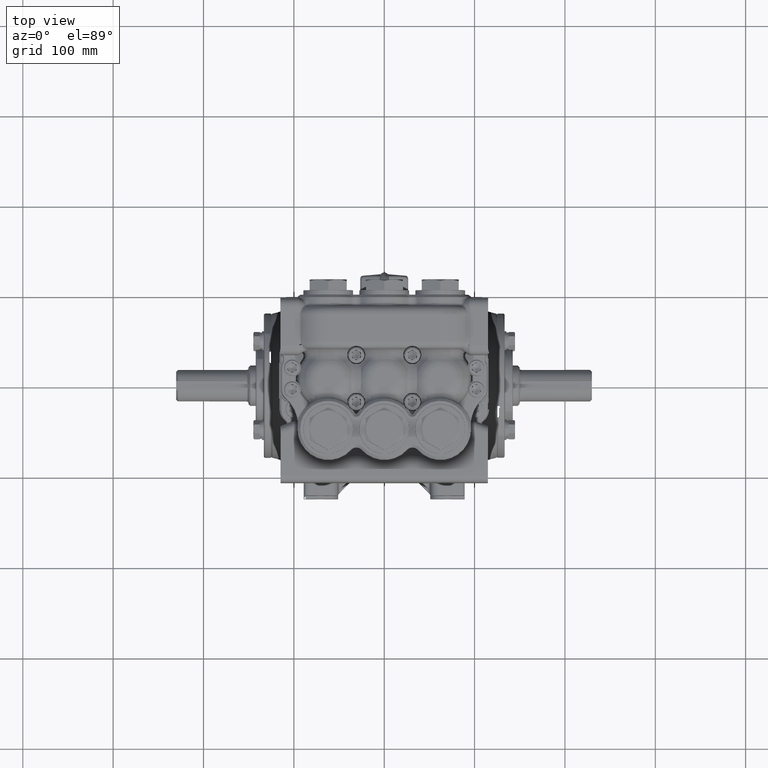
[diagram: clean part render]
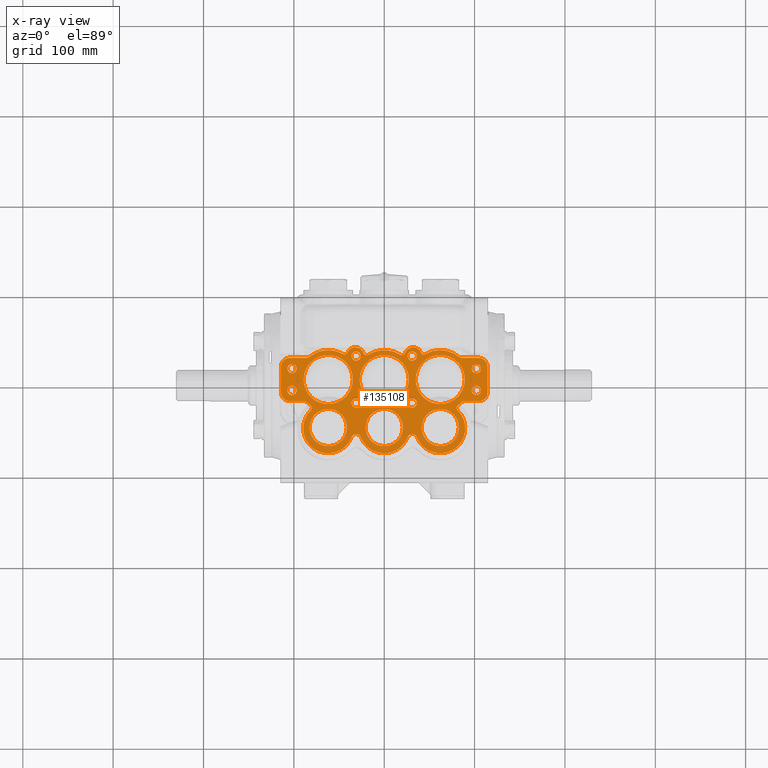
[diagram: x-ray — body ghosted, one internal face saturated and labeled with its STEP entity id]
A machine part, top view, then the same camera in x-ray: the body is ghosted and one INTERNAL B-rep face — a face not visible from any outside direction — is saturated and labeled: STEP entity #135108.
In plain terms, the highlighted planar face has unit normal (0, 0, 1).
Its self-contained STEP definition (entity closure, byte-faithful):
#68 = AXIS2_PLACEMENT_3D ( 'NONE', #134320, #39390, #81668 ) ;
#1013 = ORIENTED_EDGE ( 'NONE', *, *, #31062, .T. ) ;
#1261 = CARTESIAN_POINT ( 'NONE',  ( -3.251000000000000778, -2.092000000000000970, 15.33165354330710350 ) ) ;
#1314 = CARTESIAN_POINT ( 'NONE',  ( -3.361465562303387333, 0.9474999999999957900, 15.33165354330710350 ) ) ;
#1348 = CARTESIAN_POINT ( 'NONE',  ( 4.499999999999995559, 0.5687992125984246972, 15.33165354330710350 ) ) ;
#1635 = CARTESIAN_POINT ( 'NONE',  ( 1.220472440944881276, -2.595029314722647751, 15.33165354330710350 ) ) ;
#1731 = EDGE_CURVE ( 'NONE', #26584, #92463, #87414, .T. ) ;
#2173 = CARTESIAN_POINT ( 'NONE',  ( -2.440944881889764329, -2.125984251968504157, 15.33165354330710350 ) ) ;
#2717 = CARTESIAN_POINT ( 'NONE',  ( -4.015748031496062964, 0.4724409448818898127, 15.33165354330710350 ) ) ;
#2914 = VERTEX_POINT ( 'NONE', #96301 ) ;
#3021 = DIRECTION ( 'NONE',  ( 1.000000000000000000, 0.0000000000000000000, 0.0000000000000000000 ) ) ;
#3092 = CARTESIAN_POINT ( 'NONE',  ( -3.510907914435821287, 7.288787522157093710E-16, 15.33165354330710350 ) ) ;
#3622 = CIRCLE ( 'NONE', #81123, 0.2007874015748029040 ) ;
#3909 = AXIS2_PLACEMENT_3D ( 'NONE', #78963, #121215, #26281 ) ;
#4114 = CARTESIAN_POINT ( 'NONE',  ( 4.121299212598424688, 0.5687992125984246972, 15.33165354330710350 ) ) ;
#4572 = CIRCLE ( 'NONE', #82089, 0.2007874015748029040 ) ;
#5075 = CIRCLE ( 'NONE', #82579, 0.8100000000000002753 ) ;
#5111 = AXIS2_PLACEMENT_3D ( 'NONE', #15072, #46946, #89194 ) ;
#5320 = EDGE_CURVE ( 'NONE', #104525, #115687, #7580, .T. ) ;
#5604 = CIRCLE ( 'NONE', #83109, 1.092499999999994698 ) ;
#6411 = AXIS2_PLACEMENT_3D ( 'NONE', #29612, #71868, #114122 ) ;
#6464 = DIRECTION ( 'NONE',  ( 1.000000000000000000, 0.0000000000000000000, 0.0000000000000000000 ) ) ;
#6570 = CIRCLE ( 'NONE', #84073, 0.2007874015748029040 ) ;
#6727 = EDGE_CURVE ( 'NONE', #30309, #67691, #5604, .T. ) ;
#7278 = FACE_BOUND ( 'NONE', #17839, .T. ) ;
#7339 = ORIENTED_EDGE ( 'NONE', *, *, #37893, .T. ) ;
#7370 = ORIENTED_EDGE ( 'NONE', *, *, #30286, .T. ) ;
#7374 = VERTEX_POINT ( 'NONE', #16207 ) ;
#7580 = CIRCLE ( 'NONE', #85097, 0.2007874015748029040 ) ;
#7735 = AXIS2_PLACEMENT_3D ( 'NONE', #44910, #87187, #129449 ) ;
#7770 = EDGE_CURVE ( 'NONE', #85205, #63464, #85506, .T. ) ;
#8103 = ORIENTED_EDGE ( 'NONE', *, *, #94796, .T. ) ;
#8311 = VECTOR ( 'NONE', #66204, 39.37007874015748143 ) ;
#8777 = DIRECTION ( 'NONE',  ( 0.0000000000000000000, 0.0000000000000000000, 1.000000000000000000 ) ) ;
#8931 = DIRECTION ( 'NONE',  ( 1.000000000000000000, 0.0000000000000000000, 0.0000000000000000000 ) ) ;
#9026 = DIRECTION ( 'NONE',  ( 1.000000000000000000, 0.0000000000000000000, 0.0000000000000000000 ) ) ;
#9092 = AXIS2_PLACEMENT_3D ( 'NONE', #19799, #93962, #136245 ) ;
#9109 = LINE ( 'NONE', #51394, #97792 ) ;
#9164 = AXIS2_PLACEMENT_3D ( 'NONE', #82420, #124673, #29752 ) ;
#9369 = CARTESIAN_POINT ( 'NONE',  ( -4.121299212598425576, 0.5687992125984246972, 15.33165354330710350 ) ) ;
#9910 = CIRCLE ( 'NONE', #87384, 0.2007874015748029040 ) ;
#10647 = VERTEX_POINT ( 'NONE', #32600 ) ;
#10857 = EDGE_CURVE ( 'NONE', #115687, #104525, #120975, .T. ) ;
#11318 = VERTEX_POINT ( 'NONE', #82440 ) ;
#11394 = EDGE_CURVE ( 'NONE', #71479, #11318, #101746, .T. ) ;
#11573 = CARTESIAN_POINT ( 'NONE',  ( -3.361465562303387333, 1.095079095483099119, 15.33165354330710350 ) ) ;
#12052 = ORIENTED_EDGE ( 'NONE', *, *, #15819, .T. ) ;
#12602 = CARTESIAN_POINT ( 'NONE',  ( -4.499999999999995559, -0.5687992125984255853, 15.33165354330710350 ) ) ;
#13172 = VERTEX_POINT ( 'NONE', #36667 ) ;
#13448 = CARTESIAN_POINT ( 'NONE',  ( 0.9068944816309711943, 1.161266051201140348, 15.33165354330710350 ) ) ;
#13791 = CARTESIAN_POINT ( 'NONE',  ( -0.7636240843073032192, 1.216985759413899970, 15.33165354330710350 ) ) ;
#14005 = AXIS2_PLACEMENT_3D ( 'NONE', #30863, #73109, #115379 ) ;
#14289 = AXIS2_PLACEMENT_3D ( 'NONE', #24882, #67146, #109404 ) ;
#14419 = CARTESIAN_POINT ( 'NONE',  ( 3.510907914435819954, 0.0000000000000000000, 15.33165354330710350 ) ) ;
#14484 = VERTEX_POINT ( 'NONE', #94837 ) ;
#14550 = ORIENTED_EDGE ( 'NONE', *, *, #31973, .T. ) ;
#15007 = DIRECTION ( 'NONE',  ( -1.000000000000000000, 0.0000000000000000000, 0.0000000000000000000 ) ) ;
#15072 = CARTESIAN_POINT ( 'NONE',  ( -2.440944881889764329, -2.125984251968504157, 15.33165354330710350 ) ) ;
#15246 = CIRCLE ( 'NONE', #92693, 0.2007874015748029040 ) ;
#15766 = CARTESIAN_POINT ( 'NONE',  ( 4.216535433070864869, -0.4724409448818896462, 15.33165354330710350 ) ) ;
#15819 = EDGE_CURVE ( 'NONE', #70508, #66518, #68905, .T. ) ;
#16027 = VERTEX_POINT ( 'NONE', #91093 ) ;
#16142 = ORIENTED_EDGE ( 'NONE', *, *, #121885, .F. ) ;
#16207 = CARTESIAN_POINT ( 'NONE',  ( -4.121299212598425576, -0.9474999999999961231, 15.33165354330710350 ) ) ;
#17451 = CIRCLE ( 'NONE', #94929, 0.2007874015748029040 ) ;
#17694 = FACE_BOUND ( 'NONE', #72493, .T. ) ;
#17835 = CARTESIAN_POINT ( 'NONE',  ( -3.814960629921260615, -0.4724409448818896462, 15.33165354330710350 ) ) ;
#17839 = EDGE_LOOP ( 'NONE', ( #7370, #101549 ) ) ;
#18233 = EDGE_CURVE ( 'NONE', #115616, #84378, #5075, .T. ) ;
#18241 = VERTEX_POINT ( 'NONE', #110793 ) ;
#18492 = CARTESIAN_POINT ( 'NONE',  ( -2.441000000000000725, 5.978528219360845830E-16, 15.33165354330710350 ) ) ;
#18937 = CARTESIAN_POINT ( 'NONE',  ( -3.266504291152520167, 0.9821103103917191435, 15.33165354330710350 ) ) ;
#19270 = LINE ( 'NONE', #61548, #31420 ) ;
#19799 = CARTESIAN_POINT ( 'NONE',  ( 3.302499300227539347, -1.237654226447215899, 15.33165354330710350 ) ) ;
#19840 = ORIENTED_EDGE ( 'NONE', *, *, #38149, .T. ) ;
#20106 = DIRECTION ( 'NONE',  ( -0.0000000000000000000, -0.0000000000000000000, 1.000000000000000000 ) ) ;
#20162 = VERTEX_POINT ( 'NONE', #112360 ) ;
#20945 = CIRCLE ( 'NONE', #98404, 0.1457408926346303868 ) ;
#20953 = CARTESIAN_POINT ( 'NONE',  ( -5.463695987328526437E-16, -2.125984251968504157, 15.33165354330710350 ) ) ;
#21058 = DIRECTION ( 'NONE',  ( 0.0000000000000000000, 0.0000000000000000000, -1.000000000000000000 ) ) ;
#21441 = CARTESIAN_POINT ( 'NONE',  ( -1.019685039370080704, -1.023622047244094224, 15.33165354330710350 ) ) ;
#22341 = CARTESIAN_POINT ( 'NONE',  ( 1.603962561608296866, 1.182100231262654511, 15.33165354330710350 ) ) ;
#22426 = ORIENTED_EDGE ( 'NONE', *, *, #102742, .T. ) ;
#22754 = EDGE_CURVE ( 'NONE', #128726, #49199, #89875, .T. ) ;
#22781 = DIRECTION ( 'NONE',  ( 1.000000000000000000, 0.0000000000000000000, 0.0000000000000000000 ) ) ;
#22869 = AXIS2_PLACEMENT_3D ( 'NONE', #124551, #29630, #71885 ) ;
#23107 = CARTESIAN_POINT ( 'NONE',  ( -1.371092085564179719, 5.978528219360845830E-16, 15.33165354330710350 ) ) ;
#23936 = CARTESIAN_POINT ( 'NONE',  ( 4.499999999999995559, 1.024000000000000021, 15.33165354330710350 ) ) ;
#24003 = DIRECTION ( 'NONE',  ( 0.0000000000000000000, 0.0000000000000000000, 1.000000000000000000 ) ) ;
#24113 = CARTESIAN_POINT ( 'NONE',  ( -3.362644217051137918, -1.004111216730035006, 15.33165354330710350 ) ) ;
#24149 = AXIS2_PLACEMENT_3D ( 'NONE', #103728, #8777, #51073 ) ;
#24279 = VERTEX_POINT ( 'NONE', #35007 ) ;
#24665 = ORIENTED_EDGE ( 'NONE', *, *, #106478, .T. ) ;
#24683 = CARTESIAN_POINT ( 'NONE',  ( 2.440944881889763440, -2.125984251968504157, 15.33165354330710350 ) ) ;
#24882 = CARTESIAN_POINT ( 'NONE',  ( -4.121299212598425576, -0.5687992125984255853, 15.33165354330710350 ) ) ;
#25065 = ORIENTED_EDGE ( 'NONE', *, *, #114043, .T. ) ;
#25512 = CIRCLE ( 'NONE', #102940, 0.1457408926346309141 ) ;
#25649 = ORIENTED_EDGE ( 'NONE', *, *, #80608, .T. ) ;
#25730 = AXIS2_PLACEMENT_3D ( 'NONE', #38208, #80493, #122736 ) ;
#25920 = CIRCLE ( 'NONE', #103357, 1.363000000000001544 ) ;
#25977 = CARTESIAN_POINT ( 'NONE',  ( 2.440999999999998948, 0.0000000000000000000, 15.33165354330710350 ) ) ;
#26263 = ORIENTED_EDGE ( 'NONE', *, *, #75515, .T. ) ;
#26276 = DIRECTION ( 'NONE',  ( 0.0000000000000000000, 0.0000000000000000000, -1.000000000000000000 ) ) ;
#26281 = DIRECTION ( 'NONE',  ( 1.000000000000000000, 0.0000000000000000000, 0.0000000000000000000 ) ) ;
#26584 = VERTEX_POINT ( 'NONE', #1314 ) ;
#26695 = ORIENTED_EDGE ( 'NONE', *, *, #115283, .T. ) ;
#28117 = FACE_BOUND ( 'NONE', #117675, .T. ) ;
#28701 = EDGE_LOOP ( 'NONE', ( #97305, #8103, #29785, #42032, #14550, #80531, #42213, #53732, #96163, #71452, #136606, #103925, #47564, #61202, #24665, #130855, #26695, #42164, #86671, #59426, #39099, #7339, #99090, #37404, #99679, #1013, #25065, #125740, #115516, #22426, #48293, #39455, #33720 ) ) ;
#28791 = CARTESIAN_POINT ( 'NONE',  ( 1.259842519685038909, 1.024000000000000021, 15.33165354330710350 ) ) ;
#29612 = CARTESIAN_POINT ( 'NONE',  ( 1.220472440944881276, -1.023622047244094224, 15.33165354330710350 ) ) ;
#29630 = DIRECTION ( 'NONE',  ( -0.0000000000000000000, -0.0000000000000000000, -1.000000000000000000 ) ) ;
#29752 = DIRECTION ( 'NONE',  ( 1.000000000000000000, 0.0000000000000000000, 0.0000000000000000000 ) ) ;
#29785 = ORIENTED_EDGE ( 'NONE', *, *, #73594, .T. ) ;
#29903 = ORIENTED_EDGE ( 'NONE', *, *, #52284, .F. ) ;
#29974 = DIRECTION ( 'NONE',  ( -0.0000000000000000000, -0.0000000000000000000, -1.000000000000000000 ) ) ;
#30111 = DIRECTION ( 'NONE',  ( -0.0000000000000000000, -0.0000000000000000000, 1.000000000000000000 ) ) ;
#30146 = AXIS2_PLACEMENT_3D ( 'NONE', #24683, #66947, #109201 ) ;
#30171 = EDGE_CURVE ( 'NONE', #67691, #128726, #48782, .T. ) ;
#30286 = EDGE_CURVE ( 'NONE', #112102, #51030, #35583, .T. ) ;
#30309 = VERTEX_POINT ( 'NONE', #40352 ) ;
#30349 = CARTESIAN_POINT ( 'NONE',  ( 3.508033327146296454, -1.162499999999998090, 15.33165354330710350 ) ) ;
#30474 = DIRECTION ( 'NONE',  ( 1.000000000000000000, 0.0000000000000000000, 0.0000000000000000000 ) ) ;
#30754 = VERTEX_POINT ( 'NONE', #46860 ) ;
#30863 = CARTESIAN_POINT ( 'NONE',  ( 3.361465562303388666, 1.095079095483103782, 15.33165354330710350 ) ) ;
#31062 = EDGE_CURVE ( 'NONE', #40124, #61799, #46741, .T. ) ;
#31420 = VECTOR ( 'NONE', #103790, 39.37007874015748143 ) ;
#31484 = DIRECTION ( 'NONE',  ( 1.000000000000000000, 0.0000000000000000000, 0.0000000000000000000 ) ) ;
#31864 = CARTESIAN_POINT ( 'NONE',  ( 1.220472440944881276, 1.023622047244094446, 15.33165354330710350 ) ) ;
#31973 = EDGE_CURVE ( 'NONE', #76734, #58206, #19270, .T. ) ;
#31993 = AXIS2_PLACEMENT_3D ( 'NONE', #136557, #41612, #83892 ) ;
#32310 = DIRECTION ( 'NONE',  ( -0.0000000000000000000, -0.0000000000000000000, 1.000000000000000000 ) ) ;
#32496 = CARTESIAN_POINT ( 'NONE',  ( 0.8099999999999990541, -2.092000000000000082, 15.33165354330710350 ) ) ;
#32521 = DIRECTION ( 'NONE',  ( 1.000000000000000000, 0.0000000000000000000, 0.0000000000000000000 ) ) ;
#32600 = CARTESIAN_POINT ( 'NONE',  ( 4.216535433070864869, 0.4724409448818898127, 15.33165354330710350 ) ) ;
#32687 = CARTESIAN_POINT ( 'NONE',  ( 3.508033327146296454, -0.9474999999999943467, 15.33165354330710350 ) ) ;
#33057 = CARTESIAN_POINT ( 'NONE',  ( -1.259842519685040019, 1.024000000000000021, 15.33165354330710350 ) ) ;
#33642 = CARTESIAN_POINT ( 'NONE',  ( -4.015748031496062964, -0.4724409448818896462, 15.33165354330710350 ) ) ;
#33720 = ORIENTED_EDGE ( 'NONE', *, *, #30171, .T. ) ;
#33767 = CARTESIAN_POINT ( 'NONE',  ( 1.421161981903317217, -2.517901445895005086, 15.33165354330710350 ) ) ;
#33870 = DIRECTION ( 'NONE',  ( 1.000000000000000000, 0.0000000000000000000, 0.0000000000000000000 ) ) ;
#33963 = CIRCLE ( 'NONE', #111361, 0.2007874015748029040 ) ;
#34774 = DIRECTION ( 'NONE',  ( -1.000000000000000000, -5.055837290980251602E-16, 0.0000000000000000000 ) ) ;
#35005 = EDGE_LOOP ( 'NONE', ( #86801, #26263 ) ) ;
#35007 = CARTESIAN_POINT ( 'NONE',  ( -1.421259842519686512, -1.023622047244094224, 15.33165354330710350 ) ) ;
#35029 = CARTESIAN_POINT ( 'NONE',  ( 2.440944881889763440, -2.989295336501413453E-16, 15.33165354330710350 ) ) ;
#35345 = CARTESIAN_POINT ( 'NONE',  ( 3.201549489594019082, -1.341741380952743645, 15.33165354330710350 ) ) ;
#35583 = CIRCLE ( 'NONE', #112958, 1.069907914435821006 ) ;
#35686 = AXIS2_PLACEMENT_3D ( 'NONE', #39398, #81673, #123910 ) ;
#36173 = EDGE_LOOP ( 'NONE', ( #25649, #89529 ) ) ;
#36172 = EDGE_LOOP ( 'NONE', ( #77011, #102818 ) ) ;
#36288 = CIRCLE ( 'NONE', #113686, 0.8100000000000000533 ) ;
#36419 = EDGE_CURVE ( 'NONE', #73040, #16027, #64889, .T. ) ;
#36627 = EDGE_CURVE ( 'NONE', #13172, #133379, #33963, .T. ) ;
#36631 = VERTEX_POINT ( 'NONE', #21441 ) ;
#36667 = CARTESIAN_POINT ( 'NONE',  ( 1.421259842519684291, 1.023622047244094446, 15.33165354330710350 ) ) ;
#36801 = ORIENTED_EDGE ( 'NONE', *, *, #18233, .T. ) ;
#37404 = ORIENTED_EDGE ( 'NONE', *, *, #97653, .T. ) ;
#37708 = EDGE_CURVE ( 'NONE', #126378, #82148, #107112, .T. ) ;
#37736 = DIRECTION ( 'NONE',  ( 1.000000000000000000, -7.536132396314969609E-15, 0.0000000000000000000 ) ) ;
#37765 = CARTESIAN_POINT ( 'NONE',  ( -4.499999999999995559, 1.024000000000000021, 15.33165354330710350 ) ) ;
#37893 = EDGE_CURVE ( 'NONE', #92463, #67852, #51844, .T. ) ;
#38149 = EDGE_CURVE ( 'NONE', #84378, #115616, #91700, .T. ) ;
#38208 = CARTESIAN_POINT ( 'NONE',  ( 0.7636240843073022200, 1.216985759413899304, 15.33165354330710350 ) ) ;
#38460 = VERTEX_POINT ( 'NONE', #114879 ) ;
#38509 = FACE_OUTER_BOUND ( 'NONE', #28701, .T. ) ;
#38533 = CIRCLE ( 'NONE', #56240, 1.069907914435821006 ) ;
#38646 = EDGE_CURVE ( 'NONE', #58206, #50540, #105067, .T. ) ;
#38983 = DIRECTION ( 'NONE',  ( 1.000000000000000000, 0.0000000000000000000, 0.0000000000000000000 ) ) ;
#39099 = ORIENTED_EDGE ( 'NONE', *, *, #1731, .T. ) ;
#39202 = FACE_BOUND ( 'NONE', #121057, .T. ) ;
#39390 = DIRECTION ( 'NONE',  ( 0.0000000000000000000, 0.0000000000000000000, 1.000000000000000000 ) ) ;
#39398 = CARTESIAN_POINT ( 'NONE',  ( 4.015748031496062076, -0.4724409448818896462, 15.33165354330710350 ) ) ;
#39455 = ORIENTED_EDGE ( 'NONE', *, *, #6727, .T. ) ;
#39839 = ORIENTED_EDGE ( 'NONE', *, *, #106447, .F. ) ;
#39942 = CARTESIAN_POINT ( 'NONE',  ( 4.015748031496062076, 0.4724409448818898127, 15.33165354330710350 ) ) ;
#40124 = VERTEX_POINT ( 'NONE', #116695 ) ;
#40352 = CARTESIAN_POINT ( 'NONE',  ( -1.019782899986446667, -2.517901445895004642, 15.33165354330710350 ) ) ;
#41612 = DIRECTION ( 'NONE',  ( 0.0000000000000000000, 0.0000000000000000000, -1.000000000000000000 ) ) ;
#42031 = AXIS2_PLACEMENT_3D ( 'NONE', #83133, #125392, #30474 ) ;
#42032 = ORIENTED_EDGE ( 'NONE', *, *, #72172, .T. ) ;
#42164 = ORIENTED_EDGE ( 'NONE', *, *, #134109, .T. ) ;
#42213 = ORIENTED_EDGE ( 'NONE', *, *, #104448, .T. ) ;
#42882 = CIRCLE ( 'NONE', #120344, 0.2007874015748029040 ) ;
#43136 = CARTESIAN_POINT ( 'NONE',  ( -2.441000000000000725, 5.978528219360845830E-16, 15.33165354330710350 ) ) ;
#43436 = CIRCLE ( 'NONE', #120899, 0.2007874015748029040 ) ;
#43941 = DIRECTION ( 'NONE',  ( -0.0000000000000000000, -0.0000000000000000000, -1.000000000000000000 ) ) ;
#44310 = CARTESIAN_POINT ( 'NONE',  ( -3.201549489594020415, -1.341741380952743867, 15.33165354330710350 ) ) ;
#44477 = DIRECTION ( 'NONE',  ( 0.0000000000000000000, 0.0000000000000000000, 1.000000000000000000 ) ) ;
#44850 = CARTESIAN_POINT ( 'NONE',  ( 4.121299212598424688, -0.5687992125984236980, 15.33165354330710350 ) ) ;
#44910 = CARTESIAN_POINT ( 'NONE',  ( -4.015748031496062964, 0.4724409448818898127, 15.33165354330710350 ) ) ;
#45016 = DIRECTION ( 'NONE',  ( -0.0000000000000000000, -0.0000000000000000000, 1.000000000000000000 ) ) ;
#45331 = CIRCLE ( 'NONE', #122770, 1.362999999999995770 ) ;
#45566 = VERTEX_POINT ( 'NONE', #18937 ) ;
#45602 = ORIENTED_EDGE ( 'NONE', *, *, #62839, .F. ) ;
#45925 = CARTESIAN_POINT ( 'NONE',  ( -1.603962561608297754, 1.182100231262655177, 15.33165354330710350 ) ) ;
#46423 = DIRECTION ( 'NONE',  ( 0.0000000000000000000, 0.0000000000000000000, 1.000000000000000000 ) ) ;
#46741 = CIRCLE ( 'NONE', #64429, 0.2150000000000041323 ) ;
#46752 = CIRCLE ( 'NONE', #124191, 0.2007874015748029040 ) ;
#46790 = CARTESIAN_POINT ( 'NONE',  ( 3.814960629921258839, -0.4724409448818896462, 15.33165354330710350 ) ) ;
#46860 = CARTESIAN_POINT ( 'NONE',  ( -0.6819191757926990061, 1.086772854687765744, 15.33165354330710350 ) ) ;
#46933 = CARTESIAN_POINT ( 'NONE',  ( 2.440999999999998504, -2.092000000000001414, 15.33165354330710350 ) ) ;
#46946 = DIRECTION ( 'NONE',  ( 0.0000000000000000000, 0.0000000000000000000, 1.000000000000000000 ) ) ;
#47267 = EDGE_CURVE ( 'NONE', #36631, #24279, #3622, .T. ) ;
#47308 = CIRCLE ( 'NONE', #124760, 0.2150000000000041323 ) ;
#47391 = EDGE_CURVE ( 'NONE', #53959, #73040, #92182, .T. ) ;
#47400 = AXIS2_PLACEMENT_3D ( 'NONE', #67676, #109934, #15007 ) ;
#47492 = CIRCLE ( 'NONE', #124958, 1.069907914435821006 ) ;
#47564 = ORIENTED_EDGE ( 'NONE', *, *, #62409, .T. ) ;
#47904 = AXIS2_PLACEMENT_3D ( 'NONE', #2173, #44477, #86760 ) ;
#48014 = CARTESIAN_POINT ( 'NONE',  ( 0.6819191757926982289, 1.086772854687765744, 15.33165354330710350 ) ) ;
#48293 = ORIENTED_EDGE ( 'NONE', *, *, #71538, .T. ) ;
#48296 = ORIENTED_EDGE ( 'NONE', *, *, #59878, .F. ) ;
#48782 = CIRCLE ( 'NONE', #126256, 0.2150000000000041323 ) ;
#49199 = VERTEX_POINT ( 'NONE', #35345 ) ;
#49298 = EDGE_CURVE ( 'NONE', #51030, #112102, #63685, .T. ) ;
#49344 = ORIENTED_EDGE ( 'NONE', *, *, #5320, .F. ) ;
#49562 = FACE_BOUND ( 'NONE', #35005, .T. ) ;
#49836 = EDGE_LOOP ( 'NONE', ( #115720, #16142 ) ) ;
#50072 = CARTESIAN_POINT ( 'NONE',  ( -5.463695987328526437E-16, 0.0000000000000000000, 15.33165354330710350 ) ) ;
#50540 = VERTEX_POINT ( 'NONE', #99478 ) ;
#51030 = VERTEX_POINT ( 'NONE', #68799 ) ;
#51073 = DIRECTION ( 'NONE',  ( 1.000000000000000000, 0.0000000000000000000, 0.0000000000000000000 ) ) ;
#51193 = CIRCLE ( 'NONE', #128643, 1.069907914435821006 ) ;
#51373 = CARTESIAN_POINT ( 'NONE',  ( -2.441000000000000725, -2.092000000000000970, 15.33165354330710350 ) ) ;
#51394 = CARTESIAN_POINT ( 'NONE',  ( 1.259842519685038909, 0.9474999999999967892, 15.33165354330710350 ) ) ;
#51654 = DIRECTION ( 'NONE',  ( 0.0000000000000000000, 0.0000000000000000000, 1.000000000000000000 ) ) ;
#51844 = CIRCLE ( 'NONE', #69526, 0.3787007874015705378 ) ;
#51859 = LINE ( 'NONE', #94142, #102799 ) ;
#52100 = CARTESIAN_POINT ( 'NONE',  ( 1.019685039370078483, 1.023622047244094446, 15.33165354330710350 ) ) ;
#52284 = EDGE_CURVE ( 'NONE', #61658, #20162, #6570, .T. ) ;
#53089 = VERTEX_POINT ( 'NONE', #45925 ) ;
#53347 = CARTESIAN_POINT ( 'NONE',  ( -1.421161981903318550, -2.517901445895005086, 15.33165354330710350 ) ) ;
#53732 = ORIENTED_EDGE ( 'NONE', *, *, #87619, .T. ) ;
#53844 = DIRECTION ( 'NONE',  ( -0.0000000000000000000, -0.0000000000000000000, -1.000000000000000000 ) ) ;
#53860 = CIRCLE ( 'NONE', #131313, 0.1475790954831033286 ) ;
#53959 = VERTEX_POINT ( 'NONE', #61266 ) ;
#54425 = ORIENTED_EDGE ( 'NONE', *, *, #47267, .F. ) ;
#55727 = CARTESIAN_POINT ( 'NONE',  ( -3.508033327146295122, -1.162500000000000089, 15.33165354330710350 ) ) ;
#56066 = DIRECTION ( 'NONE',  ( -0.0000000000000000000, -0.0000000000000000000, -1.000000000000000000 ) ) ;
#56240 = AXIS2_PLACEMENT_3D ( 'NONE', #25977, #68227, #110489 ) ;
#57006 = VERTEX_POINT ( 'NONE', #1348 ) ;
#57070 = CIRCLE ( 'NONE', #134535, 0.3787007874015708153 ) ;
#57231 = AXIS2_PLACEMENT_3D ( 'NONE', #84135, #126397, #31484 ) ;
#57436 = CARTESIAN_POINT ( 'NONE',  ( -1.631000000000000671, -2.092000000000000970, 15.33165354330710350 ) ) ;
#57681 = VECTOR ( 'NONE', #34774, 39.37007874015748143 ) ;
#57729 = CARTESIAN_POINT ( 'NONE',  ( -1.421259842519685401, 1.023622047244094446, 15.33165354330710350 ) ) ;
#58206 = VERTEX_POINT ( 'NONE', #114225 ) ;
#59170 = CARTESIAN_POINT ( 'NONE',  ( 4.015748031496062076, 0.4724409448818898127, 15.33165354330710350 ) ) ;
#59172 = EDGE_CURVE ( 'NONE', #61582, #14484, #73739, .T. ) ;
#59280 = AXIS2_PLACEMENT_3D ( 'NONE', #4114, #46423, #88685 ) ;
#59426 = ORIENTED_EDGE ( 'NONE', *, *, #125858, .T. ) ;
#59846 = CIRCLE ( 'NONE', #68, 1.282999999999996144 ) ;
#59869 = EDGE_LOOP ( 'NONE', ( #111227, #49344 ) ) ;
#59878 = EDGE_CURVE ( 'NONE', #133379, #13172, #42882, .T. ) ;
#59978 = FACE_BOUND ( 'NONE', #108433, .T. ) ;
#60783 = DIRECTION ( 'NONE',  ( -0.0000000000000000000, -0.0000000000000000000, -1.000000000000000000 ) ) ;
#61120 = EDGE_CURVE ( 'NONE', #7374, #40124, #51859, .T. ) ;
#61202 = ORIENTED_EDGE ( 'NONE', *, *, #7770, .T. ) ;
#61266 = CARTESIAN_POINT ( 'NONE',  ( -3.219657529233524773, -1.118649012365754203, 15.33165354330710350 ) ) ;
#61363 = VERTEX_POINT ( 'NONE', #67719 ) ;
#61548 = CARTESIAN_POINT ( 'NONE',  ( 1.259842519685039131, -0.9474999999999947908, 15.33165354330710350 ) ) ;
#61582 = VERTEX_POINT ( 'NONE', #105393 ) ;
#61635 = CARTESIAN_POINT ( 'NONE',  ( -1.220472440944882386, 1.023622047244094446, 15.33165354330710350 ) ) ;
#61658 = VERTEX_POINT ( 'NONE', #117827 ) ;
#61722 = CARTESIAN_POINT ( 'NONE',  ( 1.220472440944881276, 1.023622047244094446, 15.33165354330710350 ) ) ;
#61790 = EDGE_CURVE ( 'NONE', #104712, #103711, #67530, .T. ) ;
#61799 = VERTEX_POINT ( 'NONE', #24113 ) ;
#62289 = EDGE_CURVE ( 'NONE', #67852, #135201, #132680, .T. ) ;
#62389 = DIRECTION ( 'NONE',  ( 1.000000000000000000, 0.0000000000000000000, 0.0000000000000000000 ) ) ;
#62409 = EDGE_CURVE ( 'NONE', #68171, #85205, #116971, .T. ) ;
#62433 = EDGE_CURVE ( 'NONE', #135462, #114054, #134700, .T. ) ;
#62839 = EDGE_CURVE ( 'NONE', #24279, #36631, #17451, .T. ) ;
#62864 = AXIS2_PLACEMENT_3D ( 'NONE', #35029, #77285, #119538 ) ;
#63011 = AXIS2_PLACEMENT_3D ( 'NONE', #44850, #87124, #129381 ) ;
#63240 = DIRECTION ( 'NONE',  ( 0.0000000000000000000, 0.0000000000000000000, 1.000000000000000000 ) ) ;
#63337 = DIRECTION ( 'NONE',  ( -1.000000000000000000, 0.0000000000000000000, 0.0000000000000000000 ) ) ;
#63464 = VERTEX_POINT ( 'NONE', #48014 ) ;
#63685 = CIRCLE ( 'NONE', #3909, 1.069907914435821006 ) ;
#64337 = AXIS2_PLACEMENT_3D ( 'NONE', #59170, #101414, #6464 ) ;
#64429 = AXIS2_PLACEMENT_3D ( 'NONE', #55727, #97983, #3021 ) ;
#64889 = CIRCLE ( 'NONE', #5111, 1.092499999999994476 ) ;
#65805 = AXIS2_PLACEMENT_3D ( 'NONE', #13791, #56066, #98326 ) ;
#66196 = CIRCLE ( 'NONE', #6411, 0.2007874015748029040 ) ;
#66204 = DIRECTION ( 'NONE',  ( -0.0000000000000000000, 1.000000000000000000, 0.0000000000000000000 ) ) ;
#66268 = DIRECTION ( 'NONE',  ( 1.000000000000000000, 0.0000000000000000000, 0.0000000000000000000 ) ) ;
#66384 = EDGE_CURVE ( 'NONE', #87945, #18241, #46752, .T. ) ;
#66518 = VERTEX_POINT ( 'NONE', #14419 ) ;
#66611 = EDGE_CURVE ( 'NONE', #114217, #96002, #51193, .T. ) ;
#66947 = DIRECTION ( 'NONE',  ( 0.0000000000000000000, 0.0000000000000000000, 1.000000000000000000 ) ) ;
#67146 = DIRECTION ( 'NONE',  ( 0.0000000000000000000, 0.0000000000000000000, 1.000000000000000000 ) ) ;
#67530 = CIRCLE ( 'NONE', #7735, 0.2007874015748029040 ) ;
#67676 = CARTESIAN_POINT ( 'NONE',  ( 2.440999999999998504, -2.092000000000001414, 15.33165354330710350 ) ) ;
#67691 = VERTEX_POINT ( 'NONE', #123908 ) ;
#67719 = CARTESIAN_POINT ( 'NONE',  ( -0.9068944816309724155, 1.161266051201140570, 15.33165354330710350 ) ) ;
#67852 = VERTEX_POINT ( 'NONE', #86436 ) ;
#67986 = EDGE_CURVE ( 'NONE', #10647, #109587, #124080, .T. ) ;
#68171 = VERTEX_POINT ( 'NONE', #22341 ) ;
#68227 = DIRECTION ( 'NONE',  ( -0.0000000000000000000, -0.0000000000000000000, -1.000000000000000000 ) ) ;
#68523 = DIRECTION ( 'NONE',  ( -1.000000000000000000, 0.0000000000000000000, 0.0000000000000000000 ) ) ;
#68799 = CARTESIAN_POINT ( 'NONE',  ( -1.069907914435821450, 1.310259302796248374E-16, 15.33165354330710350 ) ) ;
#68833 = CIRCLE ( 'NONE', #9092, 0.1450000000000045974 ) ;
#68905 = CIRCLE ( 'NONE', #9164, 1.069907914435821006 ) ;
#69526 = AXIS2_PLACEMENT_3D ( 'NONE', #9369, #51654, #93932 ) ;
#70368 = FACE_BOUND ( 'NONE', #49836, .T. ) ;
#70508 = VERTEX_POINT ( 'NONE', #121621 ) ;
#71056 = DIRECTION ( 'NONE',  ( 0.0000000000000000000, 0.0000000000000000000, 1.000000000000000000 ) ) ;
#71452 = ORIENTED_EDGE ( 'NONE', *, *, #59172, .T. ) ;
#71479 = VERTEX_POINT ( 'NONE', #17835 ) ;
#71538 = EDGE_CURVE ( 'NONE', #131196, #30309, #82633, .T. ) ;
#71868 = DIRECTION ( 'NONE',  ( -0.0000000000000000000, -0.0000000000000000000, 1.000000000000000000 ) ) ;
#71885 = DIRECTION ( 'NONE',  ( 1.000000000000000000, 0.0000000000000000000, 0.0000000000000000000 ) ) ;
#72172 = EDGE_CURVE ( 'NONE', #73521, #76734, #47308, .T. ) ;
#72231 = DIRECTION ( 'NONE',  ( 1.000000000000000000, 0.0000000000000000000, 0.0000000000000000000 ) ) ;
#72366 = DIRECTION ( 'NONE',  ( 1.000000000000000000, 0.0000000000000000000, 0.0000000000000000000 ) ) ;
#72493 = EDGE_LOOP ( 'NONE', ( #54425, #45602 ) ) ;
#72587 = DIRECTION ( 'NONE',  ( -0.0000000000000000000, -0.0000000000000000000, -1.000000000000000000 ) ) ;
#73040 = VERTEX_POINT ( 'NONE', #44310 ) ;
#73109 = DIRECTION ( 'NONE',  ( -0.0000000000000000000, -0.0000000000000000000, -1.000000000000000000 ) ) ;
#73521 = VERTEX_POINT ( 'NONE', #75312 ) ;
#73594 = EDGE_CURVE ( 'NONE', #92153, #73521, #45331, .T. ) ;
#73739 = CIRCLE ( 'NONE', #14005, 0.1475790954831082413 ) ;
#74027 = CIRCLE ( 'NONE', #14289, 0.3787007874015705378 ) ;
#74102 = DIRECTION ( 'NONE',  ( -0.0000000000000000000, -0.0000000000000000000, 1.000000000000000000 ) ) ;
#74547 = DIRECTION ( 'NONE',  ( 1.000000000000000000, 0.0000000000000000000, 0.0000000000000000000 ) ) ;
#74936 = AXIS2_PLACEMENT_3D ( 'NONE', #115987, #21058, #63337 ) ;
#75029 = EDGE_LOOP ( 'NONE', ( #114574, #48296 ) ) ;
#75306 = DIRECTION ( 'NONE',  ( 0.0000000000000000000, 0.0000000000000000000, 1.000000000000000000 ) ) ;
#75312 = CARTESIAN_POINT ( 'NONE',  ( 3.362644217051137918, -1.004111216730033895, 15.33165354330710350 ) ) ;
#75466 = CARTESIAN_POINT ( 'NONE',  ( -1.220472440944882386, 1.023622047244094446, 15.33165354330710350 ) ) ;
#75515 = EDGE_CURVE ( 'NONE', #96002, #114217, #47492, .T. ) ;
#75881 = DIRECTION ( 'NONE',  ( -0.0000000000000000000, -0.0000000000000000000, 1.000000000000000000 ) ) ;
#76234 = CIRCLE ( 'NONE', #93937, 0.8100000000000000533 ) ;
#76734 = VERTEX_POINT ( 'NONE', #32687 ) ;
#76968 = CARTESIAN_POINT ( 'NONE',  ( 3.814960629921258839, 0.4724409448818898127, 15.33165354330710350 ) ) ;
#77011 = ORIENTED_EDGE ( 'NONE', *, *, #79791, .T. ) ;
#77285 = DIRECTION ( 'NONE',  ( 0.0000000000000000000, 0.0000000000000000000, 1.000000000000000000 ) ) ;
#78012 = EDGE_CURVE ( 'NONE', #18241, #87945, #43436, .T. ) ;
#78963 = CARTESIAN_POINT ( 'NONE',  ( -5.463695987328526437E-16, 0.0000000000000000000, 15.33165354330710350 ) ) ;
#79791 = EDGE_CURVE ( 'NONE', #82148, #126378, #36288, .T. ) ;
#80047 = DIRECTION ( 'NONE',  ( 0.0000000000000000000, -1.000000000000000000, 0.0000000000000000000 ) ) ;
#80135 = EDGE_CURVE ( 'NONE', #14484, #111689, #122598, .T. ) ;
#80194 = EDGE_CURVE ( 'NONE', #66518, #70508, #38533, .T. ) ;
#80493 = DIRECTION ( 'NONE',  ( -0.0000000000000000000, -0.0000000000000000000, -1.000000000000000000 ) ) ;
#80531 = ORIENTED_EDGE ( 'NONE', *, *, #38646, .T. ) ;
#80608 = EDGE_CURVE ( 'NONE', #114054, #135462, #76234, .T. ) ;
#80796 = FACE_BOUND ( 'NONE', #91908, .T. ) ;
#81123 = AXIS2_PLACEMENT_3D ( 'NONE', #127209, #32310, #74547 ) ;
#81481 = FACE_BOUND ( 'NONE', #36173, .T. ) ;
#81668 = DIRECTION ( 'NONE',  ( 1.000000000000000000, 0.0000000000000000000, 0.0000000000000000000 ) ) ;
#81673 = DIRECTION ( 'NONE',  ( -0.0000000000000000000, -0.0000000000000000000, 1.000000000000000000 ) ) ;
#82089 = AXIS2_PLACEMENT_3D ( 'NONE', #39942, #82236, #124484 ) ;
#82148 = VERTEX_POINT ( 'NONE', #94140 ) ;
#82236 = DIRECTION ( 'NONE',  ( -0.0000000000000000000, -0.0000000000000000000, 1.000000000000000000 ) ) ;
#82420 = CARTESIAN_POINT ( 'NONE',  ( 2.440999999999998948, 0.0000000000000000000, 15.33165354330710350 ) ) ;
#82440 = CARTESIAN_POINT ( 'NONE',  ( -4.216535433070866645, -0.4724409448818896462, 15.33165354330710350 ) ) ;
#82579 = AXIS2_PLACEMENT_3D ( 'NONE', #121210, #26276, #68523 ) ;
#82633 = CIRCLE ( 'NONE', #22869, 0.2150000000000041323 ) ;
#82946 = EDGE_LOOP ( 'NONE', ( #116297, #96195 ) ) ;
#83109 = AXIS2_PLACEMENT_3D ( 'NONE', #20953, #63240, #105498 ) ;
#83133 = CARTESIAN_POINT ( 'NONE',  ( -4.015748031496062964, -0.4724409448818896462, 15.33165354330710350 ) ) ;
#83892 = DIRECTION ( 'NONE',  ( -1.000000000000000000, 0.0000000000000000000, 0.0000000000000000000 ) ) ;
#83927 = CIRCLE ( 'NONE', #24149, 1.282999999999995921 ) ;
#84073 = AXIS2_PLACEMENT_3D ( 'NONE', #115033, #20106, #62389 ) ;
#84135 = CARTESIAN_POINT ( 'NONE',  ( 1.259842519685038909, 1.024000000000000021, 15.33165354330710350 ) ) ;
#84378 = VERTEX_POINT ( 'NONE', #106085 ) ;
#85097 = AXIS2_PLACEMENT_3D ( 'NONE', #125035, #30111, #72366 ) ;
#85177 = CARTESIAN_POINT ( 'NONE',  ( -2.440944881889764329, -3.329552058504237249E-16, 15.33165354330710350 ) ) ;
#85205 = VERTEX_POINT ( 'NONE', #13448 ) ;
#85382 = ORIENTED_EDGE ( 'NONE', *, *, #80194, .T. ) ;
#85448 = DIRECTION ( 'NONE',  ( -0.0000000000000000000, -0.0000000000000000000, -1.000000000000000000 ) ) ;
#85506 = CIRCLE ( 'NONE', #25730, 0.1537240795470798116 ) ;
#86214 = DIRECTION ( 'NONE',  ( 1.000000000000000000, 0.0000000000000000000, 0.0000000000000000000 ) ) ;
#86436 = CARTESIAN_POINT ( 'NONE',  ( -4.499999999999996447, 0.5687992125984245861, 15.33165354330710350 ) ) ;
#86528 = CARTESIAN_POINT ( 'NONE',  ( -1.220472440944883497, -1.023622047244094224, 15.33165354330710350 ) ) ;
#86671 = ORIENTED_EDGE ( 'NONE', *, *, #93708, .T. ) ;
#86760 = DIRECTION ( 'NONE',  ( 1.000000000000000000, 0.0000000000000000000, 0.0000000000000000000 ) ) ;
#86801 = ORIENTED_EDGE ( 'NONE', *, *, #66611, .T. ) ;
#87124 = DIRECTION ( 'NONE',  ( 0.0000000000000000000, 0.0000000000000000000, 1.000000000000000000 ) ) ;
#87187 = DIRECTION ( 'NONE',  ( -0.0000000000000000000, -0.0000000000000000000, 1.000000000000000000 ) ) ;
#87294 = DIRECTION ( 'NONE',  ( 1.000000000000000000, 0.0000000000000000000, 0.0000000000000000000 ) ) ;
#87384 = AXIS2_PLACEMENT_3D ( 'NONE', #2717, #45016, #87294 ) ;
#87414 = LINE ( 'NONE', #129678, #57681 ) ;
#87619 = EDGE_CURVE ( 'NONE', #57006, #2914, #101300, .T. ) ;
#87641 = AXIS2_PLACEMENT_3D ( 'NONE', #28791, #71056, #113304 ) ;
#87670 = ORIENTED_EDGE ( 'NONE', *, *, #66384, .F. ) ;
#87945 = VERTEX_POINT ( 'NONE', #57729 ) ;
#88685 = DIRECTION ( 'NONE',  ( 1.000000000000000000, 0.0000000000000000000, 0.0000000000000000000 ) ) ;
#89052 = EDGE_CURVE ( 'NONE', #30754, #61363, #125552, .T. ) ;
#89183 = DIRECTION ( 'NONE',  ( 0.0000000000000000000, 0.0000000000000000000, -1.000000000000000000 ) ) ;
#89194 = DIRECTION ( 'NONE',  ( 1.000000000000000000, 0.0000000000000000000, 0.0000000000000000000 ) ) ;
#89529 = ORIENTED_EDGE ( 'NONE', *, *, #62433, .T. ) ;
#89875 = CIRCLE ( 'NONE', #30146, 1.092499999999994476 ) ;
#90385 = CARTESIAN_POINT ( 'NONE',  ( -3.302499300227540679, -1.237654226447215899, 15.33165354330710350 ) ) ;
#91093 = CARTESIAN_POINT ( 'NONE',  ( -3.533444881889758804, -2.125984251968504157, 15.33165354330710350 ) ) ;
#91619 = CARTESIAN_POINT ( 'NONE',  ( 1.736395246598151143, 1.242944226301745170, 15.33165354330710350 ) ) ;
#91700 = CIRCLE ( 'NONE', #31993, 0.8100000000000002753 ) ;
#91848 = FACE_BOUND ( 'NONE', #107375, .T. ) ;
#91908 = EDGE_LOOP ( 'NONE', ( #108269, #87670 ) ) ;
#92153 = VERTEX_POINT ( 'NONE', #99291 ) ;
#92182 = CIRCLE ( 'NONE', #109885, 0.1450000000000045974 ) ;
#92347 = DIRECTION ( 'NONE',  ( -0.0000000000000000000, -0.0000000000000000000, -1.000000000000000000 ) ) ;
#92463 = VERTEX_POINT ( 'NONE', #98444 ) ;
#92693 = AXIS2_PLACEMENT_3D ( 'NONE', #33642, #75881, #118137 ) ;
#93636 = DIRECTION ( 'NONE',  ( 0.0000000000000000000, 0.0000000000000000000, -1.000000000000000000 ) ) ;
#93651 = DIRECTION ( 'NONE',  ( -1.000000000000000000, 5.055837290980251602E-16, 0.0000000000000000000 ) ) ;
#93708 = EDGE_CURVE ( 'NONE', #38460, #45566, #59846, .T. ) ;
#93932 = DIRECTION ( 'NONE',  ( 1.000000000000000000, 0.0000000000000000000, 0.0000000000000000000 ) ) ;
#93937 = AXIS2_PLACEMENT_3D ( 'NONE', #51373, #93636, #135917 ) ;
#93962 = DIRECTION ( 'NONE',  ( -0.0000000000000000000, -0.0000000000000000000, -1.000000000000000000 ) ) ;
#94140 = CARTESIAN_POINT ( 'NONE',  ( 1.630999999999998451, -2.092000000000001414, 15.33165354330710350 ) ) ;
#94142 = CARTESIAN_POINT ( 'NONE',  ( 1.259842519685040019, -0.9474999999999933475, 15.33165354330710350 ) ) ;
#94796 = EDGE_CURVE ( 'NONE', #49199, #92153, #68833, .T. ) ;
#94837 = CARTESIAN_POINT ( 'NONE',  ( 3.266504291152518835, 0.9821103103917191435, 15.33165354330710350 ) ) ;
#94929 = AXIS2_PLACEMENT_3D ( 'NONE', #86528, #128787, #33870 ) ;
#96002 = VERTEX_POINT ( 'NONE', #3092 ) ;
#96122 = DIRECTION ( 'NONE',  ( 1.000000000000000000, -9.255538478269908516E-16, 0.0000000000000000000 ) ) ;
#96163 = ORIENTED_EDGE ( 'NONE', *, *, #123508, .T. ) ;
#96195 = ORIENTED_EDGE ( 'NONE', *, *, #61790, .F. ) ;
#96301 = CARTESIAN_POINT ( 'NONE',  ( 4.121299212598424688, 0.9474999999999952349, 15.33165354330710350 ) ) ;
#97050 = CARTESIAN_POINT ( 'NONE',  ( -4.216535433070866645, 0.4724409448818898127, 15.33165354330710350 ) ) ;
#97305 = ORIENTED_EDGE ( 'NONE', *, *, #22754, .T. ) ;
#97653 = EDGE_CURVE ( 'NONE', #135201, #7374, #74027, .T. ) ;
#97792 = VECTOR ( 'NONE', #93651, 39.37007874015748143 ) ;
#97983 = DIRECTION ( 'NONE',  ( -0.0000000000000000000, -0.0000000000000000000, -1.000000000000000000 ) ) ;
#98326 = DIRECTION ( 'NONE',  ( 1.000000000000000000, 0.0000000000000000000, 0.0000000000000000000 ) ) ;
#98404 = AXIS2_PLACEMENT_3D ( 'NONE', #91619, #133910, #38983 ) ;
#98444 = CARTESIAN_POINT ( 'NONE',  ( -4.121299212598425576, 0.9474999999999952349, 15.33165354330710350 ) ) ;
#99090 = ORIENTED_EDGE ( 'NONE', *, *, #62289, .T. ) ;
#99291 = CARTESIAN_POINT ( 'NONE',  ( 3.219657529233519444, -1.118649012365749984, 15.33165354330710350 ) ) ;
#99478 = CARTESIAN_POINT ( 'NONE',  ( 4.499999999999995559, -0.5687992125984234759, 15.33165354330710350 ) ) ;
#99679 = ORIENTED_EDGE ( 'NONE', *, *, #61120, .T. ) ;
#100264 = EDGE_CURVE ( 'NONE', #103711, #104712, #9910, .T. ) ;
#101300 = CIRCLE ( 'NONE', #59280, 0.3787007874015705378 ) ;
#101414 = DIRECTION ( 'NONE',  ( -0.0000000000000000000, -0.0000000000000000000, 1.000000000000000000 ) ) ;
#101549 = ORIENTED_EDGE ( 'NONE', *, *, #49298, .T. ) ;
#101746 = CIRCLE ( 'NONE', #42031, 0.2007874015748029040 ) ;
#102095 = ORIENTED_EDGE ( 'NONE', *, *, #108208, .F. ) ;
#102221 = FACE_BOUND ( 'NONE', #75029, .T. ) ;
#102742 = EDGE_CURVE ( 'NONE', #16027, #131196, #107636, .T. ) ;
#102799 = VECTOR ( 'NONE', #136418, 39.37007874015748143 ) ;
#102818 = ORIENTED_EDGE ( 'NONE', *, *, #37708, .T. ) ;
#102940 = AXIS2_PLACEMENT_3D ( 'NONE', #124895, #29974, #72231 ) ;
#103032 = DIRECTION ( 'NONE',  ( 1.000000000000000000, 0.0000000000000000000, 0.0000000000000000000 ) ) ;
#103357 = AXIS2_PLACEMENT_3D ( 'NONE', #85177, #127427, #32521 ) ;
#103711 = VERTEX_POINT ( 'NONE', #124772 ) ;
#103728 = CARTESIAN_POINT ( 'NONE',  ( -5.463695987328526437E-16, 0.0000000000000000000, 15.33165354330710350 ) ) ;
#103790 = DIRECTION ( 'NONE',  ( 1.000000000000000000, 1.967590660934735653E-16, 0.0000000000000000000 ) ) ;
#103875 = DIRECTION ( 'NONE',  ( -0.0000000000000000000, -0.0000000000000000000, 1.000000000000000000 ) ) ;
#103925 = ORIENTED_EDGE ( 'NONE', *, *, #133284, .T. ) ;
#103967 = DIRECTION ( 'NONE',  ( -0.0000000000000000000, -0.0000000000000000000, 1.000000000000000000 ) ) ;
#104448 = EDGE_CURVE ( 'NONE', #50540, #57006, #118872, .T. ) ;
#104525 = VERTEX_POINT ( 'NONE', #46790 ) ;
#104712 = VERTEX_POINT ( 'NONE', #97050 ) ;
#105067 = CIRCLE ( 'NONE', #63011, 0.3787007874015705378 ) ;
#105393 = CARTESIAN_POINT ( 'NONE',  ( 3.361465562303388666, 0.9474999999999952349, 15.33165354330710350 ) ) ;
#105498 = DIRECTION ( 'NONE',  ( 1.000000000000000000, 0.0000000000000000000, 0.0000000000000000000 ) ) ;
#105825 = ORIENTED_EDGE ( 'NONE', *, *, #11394, .F. ) ;
#105901 = VECTOR ( 'NONE', #80047, 39.37007874015748143 ) ;
#106085 = CARTESIAN_POINT ( 'NONE',  ( -0.8100000000000014966, -2.092000000000000082, 15.33165354330710350 ) ) ;
#106447 = EDGE_CURVE ( 'NONE', #20162, #61658, #66196, .T. ) ;
#106478 = EDGE_CURVE ( 'NONE', #63464, #30754, #83927, .T. ) ;
#107112 = CIRCLE ( 'NONE', #47400, 0.8100000000000000533 ) ;
#107375 = EDGE_LOOP ( 'NONE', ( #85382, #12052 ) ) ;
#107636 = CIRCLE ( 'NONE', #47904, 1.092499999999994476 ) ;
#108208 = EDGE_CURVE ( 'NONE', #11318, #71479, #15246, .T. ) ;
#108269 = ORIENTED_EDGE ( 'NONE', *, *, #78012, .F. ) ;
#108433 = EDGE_LOOP ( 'NONE', ( #39839, #29903 ) ) ;
#109201 = DIRECTION ( 'NONE',  ( 1.000000000000000000, 0.0000000000000000000, 0.0000000000000000000 ) ) ;
#109404 = DIRECTION ( 'NONE',  ( 1.000000000000000000, 0.0000000000000000000, 0.0000000000000000000 ) ) ;
#109587 = VERTEX_POINT ( 'NONE', #76968 ) ;
#109885 = AXIS2_PLACEMENT_3D ( 'NONE', #90385, #132647, #37736 ) ;
#109934 = DIRECTION ( 'NONE',  ( 0.0000000000000000000, 0.0000000000000000000, -1.000000000000000000 ) ) ;
#110489 = DIRECTION ( 'NONE',  ( 1.000000000000000000, 0.0000000000000000000, 0.0000000000000000000 ) ) ;
#110793 = CARTESIAN_POINT ( 'NONE',  ( -1.019685039370079593, 1.023622047244094446, 15.33165354330710350 ) ) ;
#111227 = ORIENTED_EDGE ( 'NONE', *, *, #10857, .F. ) ;
#111361 = AXIS2_PLACEMENT_3D ( 'NONE', #31864, #74102, #116372 ) ;
#111689 = VERTEX_POINT ( 'NONE', #111951 ) ;
#111951 = CARTESIAN_POINT ( 'NONE',  ( 1.808263906116572173, 1.116155805832981018, 15.33165354330710350 ) ) ;
#112102 = VERTEX_POINT ( 'NONE', #117949 ) ;
#112360 = CARTESIAN_POINT ( 'NONE',  ( 1.421259842519684291, -1.023622047244094224, 15.33165354330710350 ) ) ;
#112615 = FACE_BOUND ( 'NONE', #59869, .T. ) ;
#112958 = AXIS2_PLACEMENT_3D ( 'NONE', #50072, #92347, #134625 ) ;
#113304 = DIRECTION ( 'NONE',  ( 1.000000000000000000, 0.0000000000000000000, -0.0000000000000000000 ) ) ;
#113686 = AXIS2_PLACEMENT_3D ( 'NONE', #46933, #89183, #131454 ) ;
#114043 = EDGE_CURVE ( 'NONE', #61799, #53959, #25920, .T. ) ;
#114054 = VERTEX_POINT ( 'NONE', #1261 ) ;
#114122 = DIRECTION ( 'NONE',  ( 1.000000000000000000, 0.0000000000000000000, 0.0000000000000000000 ) ) ;
#114217 = VERTEX_POINT ( 'NONE', #23107 ) ;
#114225 = CARTESIAN_POINT ( 'NONE',  ( 4.121299212598424688, -0.9474999999999942357, 15.33165354330710350 ) ) ;
#114574 = ORIENTED_EDGE ( 'NONE', *, *, #36627, .F. ) ;
#114845 = DIRECTION ( 'NONE',  ( 1.000000000000000000, -3.811880921391921953E-15, 0.0000000000000000000 ) ) ;
#114879 = CARTESIAN_POINT ( 'NONE',  ( -1.808263906116573505, 1.116155805832981462, 15.33165354330710350 ) ) ;
#115033 = CARTESIAN_POINT ( 'NONE',  ( 1.220472440944881276, -1.023622047244094224, 15.33165354330710350 ) ) ;
#115283 = EDGE_CURVE ( 'NONE', #61363, #53089, #57070, .T. ) ;
#115379 = DIRECTION ( 'NONE',  ( 1.000000000000000000, 0.0000000000000000000, 0.0000000000000000000 ) ) ;
#115516 = ORIENTED_EDGE ( 'NONE', *, *, #36419, .T. ) ;
#115616 = VERTEX_POINT ( 'NONE', #32496 ) ;
#115687 = VERTEX_POINT ( 'NONE', #15766 ) ;
#115720 = ORIENTED_EDGE ( 'NONE', *, *, #67986, .F. ) ;
#115987 = CARTESIAN_POINT ( 'NONE',  ( -2.441000000000000725, -2.092000000000000970, 15.33165354330710350 ) ) ;
#116297 = ORIENTED_EDGE ( 'NONE', *, *, #100264, .F. ) ;
#116372 = DIRECTION ( 'NONE',  ( 1.000000000000000000, 0.0000000000000000000, 0.0000000000000000000 ) ) ;
#116695 = CARTESIAN_POINT ( 'NONE',  ( -3.508033327146295122, -0.9474999999999960121, 15.33165354330710350 ) ) ;
#116971 = CIRCLE ( 'NONE', #57231, 0.3787007874015708153 ) ;
#117568 = DIRECTION ( 'NONE',  ( 1.000000000000000000, 0.0000000000000000000, 0.0000000000000000000 ) ) ;
#117675 = EDGE_LOOP ( 'NONE', ( #105825, #102095 ) ) ;
#117725 = DIRECTION ( 'NONE',  ( -0.0000000000000000000, -0.0000000000000000000, 1.000000000000000000 ) ) ;
#117827 = CARTESIAN_POINT ( 'NONE',  ( 1.019685039370078483, -1.023622047244094224, 15.33165354330710350 ) ) ;
#117949 = CARTESIAN_POINT ( 'NONE',  ( 1.069907914435820340, 0.0000000000000000000, 15.33165354330710350 ) ) ;
#118137 = DIRECTION ( 'NONE',  ( 1.000000000000000000, 0.0000000000000000000, 0.0000000000000000000 ) ) ;
#118872 = LINE ( 'NONE', #23936, #8311 ) ;
#118941 = CARTESIAN_POINT ( 'NONE',  ( 2.440944881889763440, -3.329552058504237249E-16, 15.33165354330710350 ) ) ;
#119538 = DIRECTION ( 'NONE',  ( 1.000000000000000000, 0.0000000000000000000, 0.0000000000000000000 ) ) ;
#120344 = AXIS2_PLACEMENT_3D ( 'NONE', #61722, #103967, #9026 ) ;
#120899 = AXIS2_PLACEMENT_3D ( 'NONE', #75466, #117725, #22781 ) ;
#120975 = CIRCLE ( 'NONE', #35686, 0.2007874015748029040 ) ;
#121057 = EDGE_LOOP ( 'NONE', ( #19840, #36801 ) ) ;
#121210 = CARTESIAN_POINT ( 'NONE',  ( -1.204221972081856105E-15, -2.092000000000000082, 15.33165354330710350 ) ) ;
#121215 = DIRECTION ( 'NONE',  ( -0.0000000000000000000, -0.0000000000000000000, -1.000000000000000000 ) ) ;
#121621 = CARTESIAN_POINT ( 'NONE',  ( 1.371092085564177943, 1.310259302796248620E-16, 15.33165354330710350 ) ) ;
#121885 = EDGE_CURVE ( 'NONE', #109587, #10647, #4572, .T. ) ;
#122598 = CIRCLE ( 'NONE', #62864, 1.282999999999995477 ) ;
#122736 = DIRECTION ( 'NONE',  ( 1.000000000000000000, 0.0000000000000000000, 0.0000000000000000000 ) ) ;
#122770 = AXIS2_PLACEMENT_3D ( 'NONE', #118941, #24003, #66268 ) ;
#123037 = FACE_BOUND ( 'NONE', #82946, .T. ) ;
#123508 = EDGE_CURVE ( 'NONE', #2914, #61582, #9109, .T. ) ;
#123719 = PLANE ( 'NONE',  #87641 ) ;
#123908 = CARTESIAN_POINT ( 'NONE',  ( 1.019782899986445557, -2.517901445895005086, 15.33165354330710350 ) ) ;
#123910 = DIRECTION ( 'NONE',  ( 1.000000000000000000, 0.0000000000000000000, 0.0000000000000000000 ) ) ;
#124080 = CIRCLE ( 'NONE', #64337, 0.2007874015748029040 ) ;
#124191 = AXIS2_PLACEMENT_3D ( 'NONE', #61635, #103875, #8931 ) ;
#124484 = DIRECTION ( 'NONE',  ( 1.000000000000000000, 0.0000000000000000000, 0.0000000000000000000 ) ) ;
#124551 = CARTESIAN_POINT ( 'NONE',  ( -1.220472440944882386, -2.595029314722647751, 15.33165354330710350 ) ) ;
#124673 = DIRECTION ( 'NONE',  ( -0.0000000000000000000, -0.0000000000000000000, -1.000000000000000000 ) ) ;
#124760 = AXIS2_PLACEMENT_3D ( 'NONE', #30349, #72587, #114845 ) ;
#124772 = CARTESIAN_POINT ( 'NONE',  ( -3.814960629921260615, 0.4724409448818898127, 15.33165354330710350 ) ) ;
#124895 = CARTESIAN_POINT ( 'NONE',  ( -1.736395246598152475, 1.242944226301745614, 15.33165354330710350 ) ) ;
#124958 = AXIS2_PLACEMENT_3D ( 'NONE', #43136, #85448, #127681 ) ;
#125035 = CARTESIAN_POINT ( 'NONE',  ( 4.015748031496062076, -0.4724409448818896462, 15.33165354330710350 ) ) ;
#125392 = DIRECTION ( 'NONE',  ( -0.0000000000000000000, -0.0000000000000000000, 1.000000000000000000 ) ) ;
#125460 = CARTESIAN_POINT ( 'NONE',  ( 3.250999999999998558, -2.092000000000001414, 15.33165354330710350 ) ) ;
#125552 = CIRCLE ( 'NONE', #65805, 0.1537240795470805055 ) ;
#125740 = ORIENTED_EDGE ( 'NONE', *, *, #47391, .T. ) ;
#125858 = EDGE_CURVE ( 'NONE', #45566, #26584, #53860, .T. ) ;
#126256 = AXIS2_PLACEMENT_3D ( 'NONE', #1635, #43941, #86214 ) ;
#126378 = VERTEX_POINT ( 'NONE', #125460 ) ;
#126397 = DIRECTION ( 'NONE',  ( 0.0000000000000000000, 0.0000000000000000000, 1.000000000000000000 ) ) ;
#127209 = CARTESIAN_POINT ( 'NONE',  ( -1.220472440944883497, -1.023622047244094224, 15.33165354330710350 ) ) ;
#127427 = DIRECTION ( 'NONE',  ( 0.0000000000000000000, 0.0000000000000000000, 1.000000000000000000 ) ) ;
#127681 = DIRECTION ( 'NONE',  ( 1.000000000000000000, 0.0000000000000000000, 0.0000000000000000000 ) ) ;
#128643 = AXIS2_PLACEMENT_3D ( 'NONE', #18492, #60783, #103032 ) ;
#128726 = VERTEX_POINT ( 'NONE', #33767 ) ;
#128787 = DIRECTION ( 'NONE',  ( -0.0000000000000000000, -0.0000000000000000000, 1.000000000000000000 ) ) ;
#129381 = DIRECTION ( 'NONE',  ( 1.000000000000000000, 0.0000000000000000000, 0.0000000000000000000 ) ) ;
#129449 = DIRECTION ( 'NONE',  ( 1.000000000000000000, 0.0000000000000000000, 0.0000000000000000000 ) ) ;
#129678 = CARTESIAN_POINT ( 'NONE',  ( 1.259842519685038909, 0.9474999999999980105, 15.33165354330710350 ) ) ;
#130855 = ORIENTED_EDGE ( 'NONE', *, *, #89052, .T. ) ;
#131196 = VERTEX_POINT ( 'NONE', #53347 ) ;
#131313 = AXIS2_PLACEMENT_3D ( 'NONE', #11573, #53844, #96122 ) ;
#131454 = DIRECTION ( 'NONE',  ( -1.000000000000000000, 0.0000000000000000000, 0.0000000000000000000 ) ) ;
#132647 = DIRECTION ( 'NONE',  ( -0.0000000000000000000, -0.0000000000000000000, -1.000000000000000000 ) ) ;
#132680 = LINE ( 'NONE', #37765, #105901 ) ;
#133284 = EDGE_CURVE ( 'NONE', #111689, #68171, #20945, .T. ) ;
#133379 = VERTEX_POINT ( 'NONE', #52100 ) ;
#133910 = DIRECTION ( 'NONE',  ( -0.0000000000000000000, -0.0000000000000000000, -1.000000000000000000 ) ) ;
#134109 = EDGE_CURVE ( 'NONE', #53089, #38460, #25512, .T. ) ;
#134128 = FACE_BOUND ( 'NONE', #36172, .T. ) ;
#134320 = CARTESIAN_POINT ( 'NONE',  ( -2.440944881889764329, -3.414809992080329023E-16, 15.33165354330710350 ) ) ;
#134535 = AXIS2_PLACEMENT_3D ( 'NONE', #33057, #75306, #117568 ) ;
#134625 = DIRECTION ( 'NONE',  ( 1.000000000000000000, 0.0000000000000000000, 0.0000000000000000000 ) ) ;
#134700 = CIRCLE ( 'NONE', #74936, 0.8100000000000000533 ) ;
#135108 = ADVANCED_FACE ( 'NONE', ( #38509, #80796, #123037, #28117, #70368, #112615, #17694, #59978, #102221, #7278, #49562, #91848, #134128, #39202, #81481 ), #123719, .T. ) ;
#135201 = VERTEX_POINT ( 'NONE', #12602 ) ;
#135462 = VERTEX_POINT ( 'NONE', #57436 ) ;
#135917 = DIRECTION ( 'NONE',  ( -1.000000000000000000, 0.0000000000000000000, 0.0000000000000000000 ) ) ;
#136245 = DIRECTION ( 'NONE',  ( 1.000000000000000000, -3.768066198157484804E-15, 0.0000000000000000000 ) ) ;
#136418 = DIRECTION ( 'NONE',  ( 1.000000000000000000, 5.902771982804207944E-16, 0.0000000000000000000 ) ) ;
#136557 = CARTESIAN_POINT ( 'NONE',  ( -1.204221972081856105E-15, -2.092000000000000082, 15.33165354330710350 ) ) ;
#136606 = ORIENTED_EDGE ( 'NONE', *, *, #80135, .T. ) ;